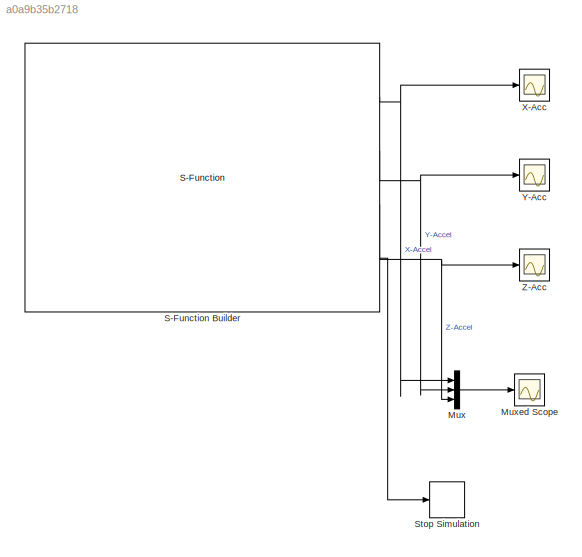
MODEL slx_a0a9b35b2718
KIND model
BLOCK [Mux] Mux
  DisplayOption = bar
  Inputs = 3
  Ports = [3, 1]
BLOCK [Scope] Muxed Scope
  DataFormat = StructureWithTime
  Floating = off
  LegendLocations = 0.92532     0.90195    0.056683    0.057027
  NumInputPorts = 1
  Ports = [1]
  SampleTime = 0
  SaveName = ScopeData3
  ShowLegends = on
  TimeRange = 30
  YMax = 2
  YMin = -0.4
BLOCK [S-Function] S-Function Builder
  CopyFcn = set_param(gcbh,'LinkStatus','none')
  EnableBusSupport = off
  FunctionName = BBB_Driver_Accelerometer_ADXL330
  InitFcn = try, set_param(gcb,'FunctionName','BBB_Driver_Accelerometer_ADXL330'), end
  OpenFcn = sfunctionwizard(gcbh)
  Parameters = uint16(2),boolean(1),uint16(6)
  Ports = [0, 4]
  PreSaveFcn = try, set_param(gcb,'FunctionName','BBB_Driver_Accelerometer_ADXL330'), end
  SFunctionModules = BBB_Driver_Accelerometer_ADXL330_wrapper
BLOCK [Stop] Stop Simulation
BLOCK [Scope] X-Acc 
  DataFormat = StructureWithTime
  Floating = off
  NumInputPorts = 1
  Ports = [1]
  SampleTime = 0
  ShowLegends = off
  YMax = 0.15
  YMin = -0.2
BLOCK [Scope] Y-Acc
  DataFormat = StructureWithTime
  Floating = off
  NumInputPorts = 1
  Ports = [1]
  SampleTime = 0
  SaveName = ScopeData1
  ShowLegends = off
  YMax = 0.5
  YMin = -2.75
BLOCK [Scope] Z-Acc
  DataFormat = StructureWithTime
  Floating = off
  NumInputPorts = 1
  Ports = [1]
  SampleTime = 0
  SaveName = ScopeData2
  ShowLegends = off
LINE Mux:1 -> Muxed Scope:1
NET S-Function Builder:1 -> Mux:1, X-Acc :1
NET S-Function Builder:2 -> Mux:2, Y-Acc:1
NET S-Function Builder:3 -> Mux:3, Z-Acc:1
LINE S-Function Builder:4 -> Stop Simulation:1
note: NET lines group one-source signal fan-out (src -> all destinations, sorted); 1:1 wires keep LINE
